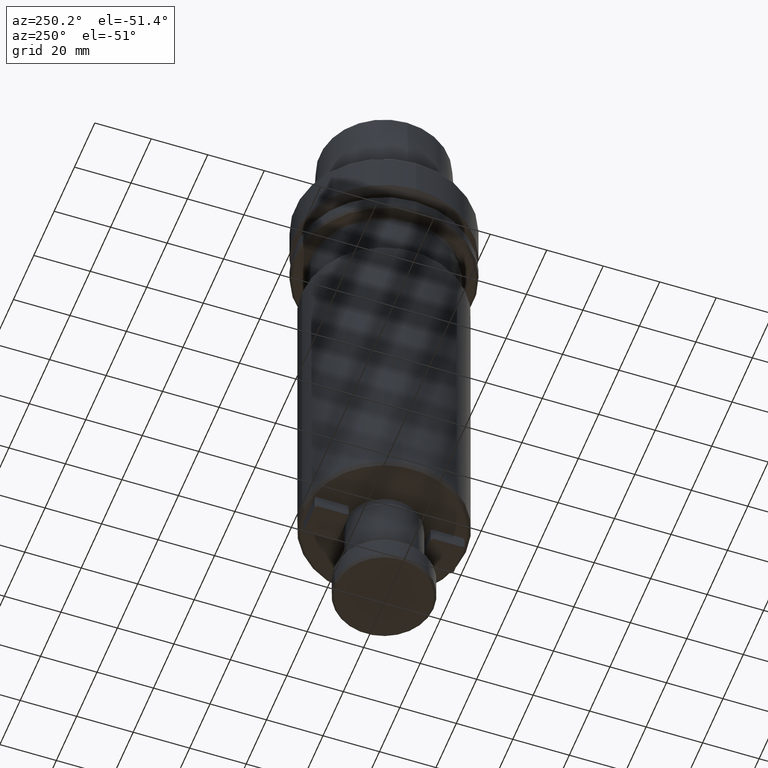
[diagram: clean part render]
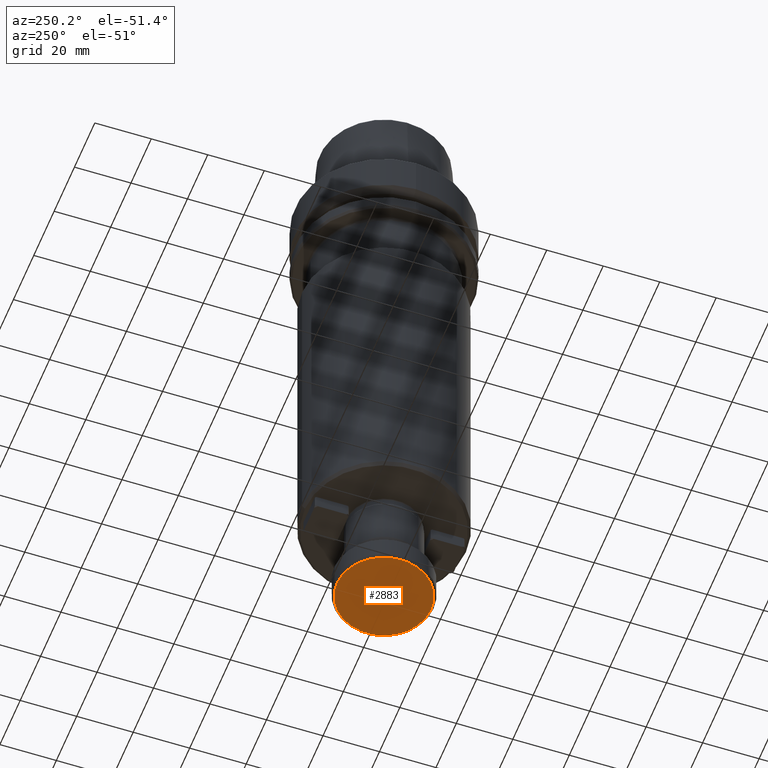
[diagram: same view with one face highlighted and labeled with its STEP entity id]
A machine part, auxiliary view. The second image highlights one B-rep face of the part: STEP entity #2883.
In plain terms, the highlighted planar face has unit normal (0, -0, 1).
Its self-contained STEP definition (entity closure, byte-faithful):
#47 = VERTEX_POINT ( 'NONE', #226 ) ;
#151 = VERTEX_POINT ( 'NONE', #367 ) ;
#203 = CARTESIAN_POINT ( 'NONE',  ( 0.0000000000000000000, -1.182088199813047200E-015, -195.0000000000000000 ) ) ;
#226 = CARTESIAN_POINT ( 'NONE',  ( 0.0000000000000000000, -16.70000000000001000, -195.0000000000000000 ) ) ;
#367 = CARTESIAN_POINT ( 'NONE',  ( 2.094146026541974800E-015, 16.70000000000001000, -195.0000000000000000 ) ) ;
#441 = DIRECTION ( 'NONE',  ( 0.0000000000000000000, -1.000000000000000000, 0.0000000000000000000 ) ) ;
#493 = AXIS2_PLACEMENT_3D ( 'NONE', #203, #1790, #441 ) ;
#551 = AXIS2_PLACEMENT_3D ( 'NONE', #2948, #635, #2251 ) ;
#635 = DIRECTION ( 'NONE',  ( 0.0000000000000000000, -7.764989291067973300E-018, 1.000000000000000000 ) ) ;
#750 = CIRCLE ( 'NONE', #493, 16.70000000000001000 ) ;
#822 = CARTESIAN_POINT ( 'NONE',  ( 0.0000000000000000000, -1.182088199813047200E-015, -195.0000000000000000 ) ) ;
#1064 = DIRECTION ( 'NONE',  ( 0.0000000000000000000, -1.000000000000000000, 0.0000000000000000000 ) ) ;
#1086 = CIRCLE ( 'NONE', #2392, 16.70000000000001000 ) ;
#1469 = ORIENTED_EDGE ( 'NONE', *, *, #2225, .F. ) ;
#1641 = ORIENTED_EDGE ( 'NONE', *, *, #1766, .F. ) ;
#1766 = EDGE_CURVE ( 'NONE', #151, #47, #750, .T. ) ;
#1790 = DIRECTION ( 'NONE',  ( -0.0000000000000000000, -7.764989291067973300E-018, 1.000000000000000000 ) ) ;
#2053 = EDGE_LOOP ( 'NONE', ( #1469, #1641 ) ) ;
#2155 = FACE_OUTER_BOUND ( 'NONE', #2053, .T. ) ;
#2225 = EDGE_CURVE ( 'NONE', #47, #151, #1086, .T. ) ;
#2251 = DIRECTION ( 'NONE',  ( 0.0000000000000000000, -1.000000000000000000, -7.764989291067973300E-018 ) ) ;
#2392 = AXIS2_PLACEMENT_3D ( 'NONE', #822, #2432, #1064 ) ;
#2432 = DIRECTION ( 'NONE',  ( -0.0000000000000000000, -7.764989291067973300E-018, 1.000000000000000000 ) ) ;
#2705 = PLANE ( 'NONE',  #551 ) ;
#2883 = ADVANCED_FACE ( 'NONE', ( #2155 ), #2705, .F. ) ;
#2948 = CARTESIAN_POINT ( 'NONE',  ( 0.0000000000000000000, 5.034637400648427300E-034, -195.0000000000000000 ) ) ;